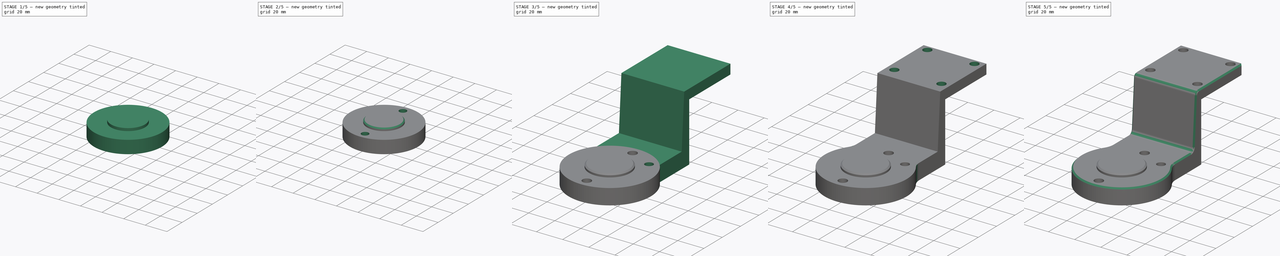
[diagram: build sequence overview — one tinted view per stage of 5, left to right]
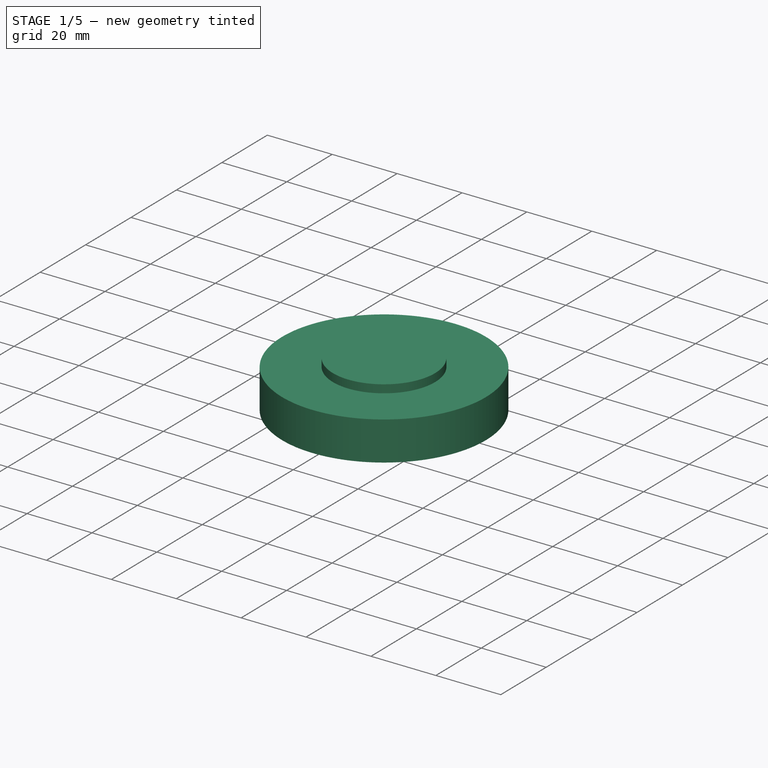
[diagram: stage 1 of 5 — iso view after this stage's code; geometry added in this stage tinted green]
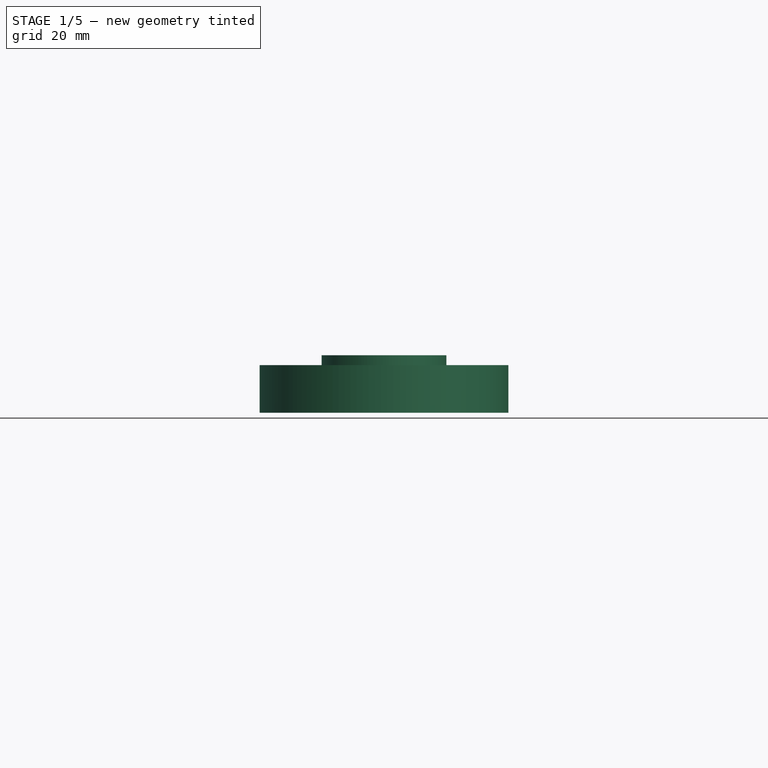
[diagram: stage 1 of 5 — front view after this stage's code; geometry added in this stage tinted green]
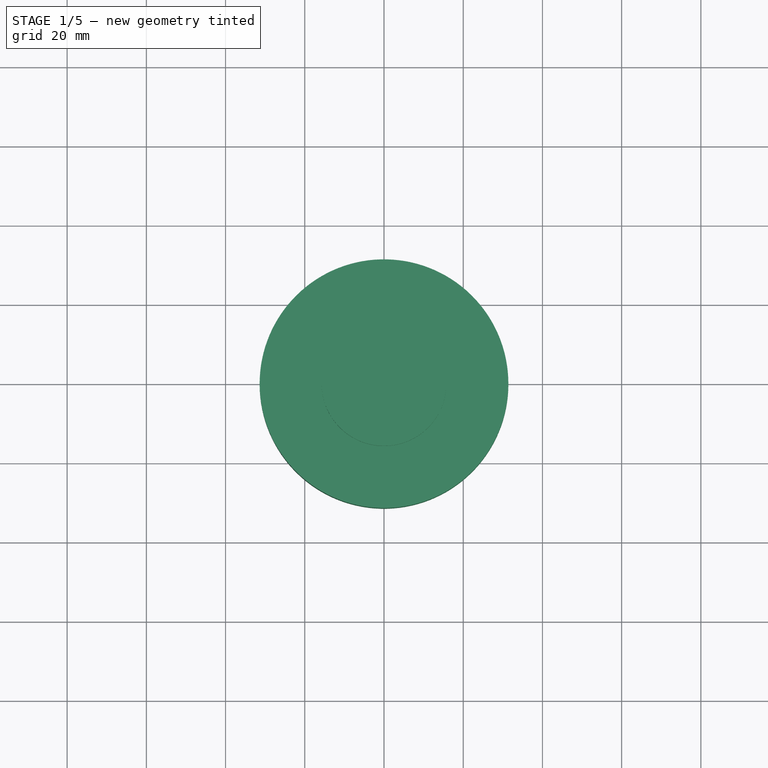
[diagram: stage 1 of 5 — top view after this stage's code; geometry added in this stage tinted green]
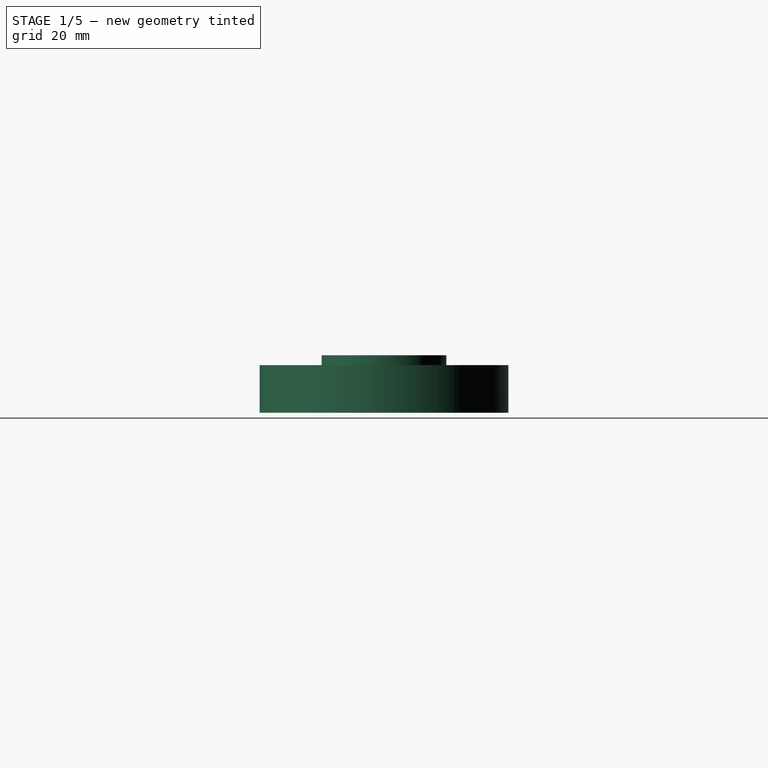
[diagram: stage 1 of 5 — right view after this stage's code; geometry added in this stage tinted green]
FCSTD DOCUMENT  (FreeCAD 0.17R13528 (Git))
Label: Kamerahalter-high
License: All rights reserved
LicenseURL: http://en.wikipedia.org/wiki/All_rights_reserved
objects: Sketcher::SketchObject×9, PartDesign::Chamfer×6, PartDesign::Pad×5, PartDesign::Pocket×5, Part::FeaturePython×2, PartDesign::Fillet×2, PartDesign::Body×1
note: 40 computed .brp shape members not serialized (recipe doc carries the construction recipe); baked Part::Feature solids carry a one-line shape summary decoded from their .brp

FEATURE [Sketcher::SketchObject] Sketch
  MapMode = 5
  Support = -> [XY_Plane]
  expr: Constraints[1] = 62.800000000000004 / 2
  sketch-geometry (1):
    g0: Circle CenterX=0 CenterY=0 CenterZ=0 NormalX=0 NormalY=0 NormalZ=1 AngleXU=0 Radius=31.4
  constraints (2):
    c: Coincident(g0,g-1)
    c: Radius(g0) = 31.4
FEATURE [PartDesign::Pad] Pad
  Length = 12
  Length2 = 100
  Profile = -> Sketch
  Type = 0
FEATURE [Sketcher::SketchObject] Sketch001
  MapMode = 2
  Support = -> [Sketch001]
  expr: Constraints[1] = 32.299999999999997 / 2
  sketch-geometry (1):
    g0: Circle CenterX=0 CenterY=0 CenterZ=0 NormalX=0 NormalY=0 NormalZ=1 AngleXU=0 Radius=16.15
  constraints (2):
    c: Coincident(g0,g-1)
    c: Radius(g0) = 16.15
FEATURE [PartDesign::Pad] Pad001
  BaseFeature = -> Pad
  Length = 2.5
  Length2 = 100
  Profile = -> Sketch001
  Type = 0
FEATURE [Sketcher::SketchObject] Sketch002
  MapMode = 5
  Support = -> [XY_Plane]
  expr: Constraints[3] = 6.5999999999999996 / 2
  expr: Constraints[2] = 6.5999999999999996 / 2
  sketch-geometry (2):
    g0: Circle CenterX=0 CenterY=25 CenterZ=0 NormalX=0 NormalY=0 NormalZ=1 AngleXU=0 Radius=3.3
    g1: Circle CenterX=0 CenterY=-25 CenterZ=0 NormalX=0 NormalY=0 NormalZ=1 AngleXU=0 Radius=3.3
  constraints (6):
    c: PointOnObject(g0,g-2)
    c: PointOnObject(g1,g-2)
    c: Radius(g0) = 3.3
    c: Radius(g1) = 3.3
    c: Symmetric(g1,g0,g-1)
    c: DistanceY(g1,g0) = 50
FEATURE [Part::FeaturePython] Clone  label="N10_804_18002"  # WARN: FeaturePython — macro-defined, semantics opaque (R4)
  AttacherType = Attacher::AttachEngine3D
  Fuse = false
  Placement = pos=(380,75,0) rot=(0,1,0;3.14159rad)
  Scale = (10,10,10)
FEATURE [Sketcher::SketchObject] Sketch009
  MapMode = 5
  Placement = pos=(0,0,12) rot=(0,0,1;0rad)
  Support = -> [Pad001]
  expr: Constraints[1] = 31.5 / 2
  sketch-geometry (1):
    g0: Circle CenterX=0 CenterY=0 CenterZ=0 NormalX=0 NormalY=0 NormalZ=1 AngleXU=0 Radius=15.75
  constraints (2):
    c: Coincident(g0,g-1)
    c: Radius(g0) = 15.75
FEATURE [PartDesign::Pad] Pad004
  BaseFeature = -> Pad001
  Length = 2.5
  Length2 = 100
  Profile = -> Sketch009
  Type = 0
FEATURE [PartDesign::Pocket] Pocket
  BaseFeature = -> Pad004
  Length = 3.5
  Length2 = 100
  Profile = -> Pad001 [Face4]
  Type = 0
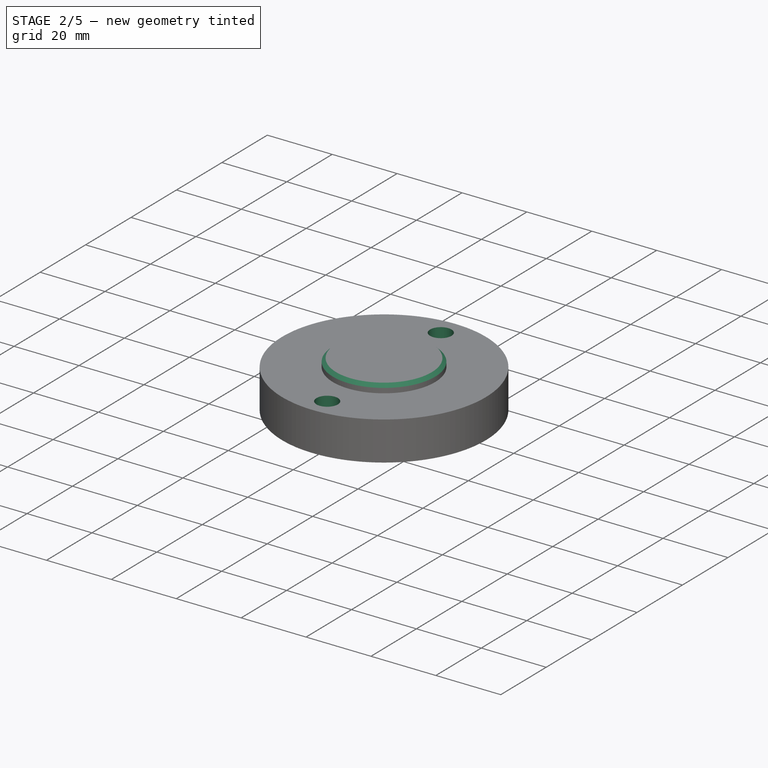
[diagram: stage 2 of 5 — iso view after this stage's code; geometry added in this stage tinted green]
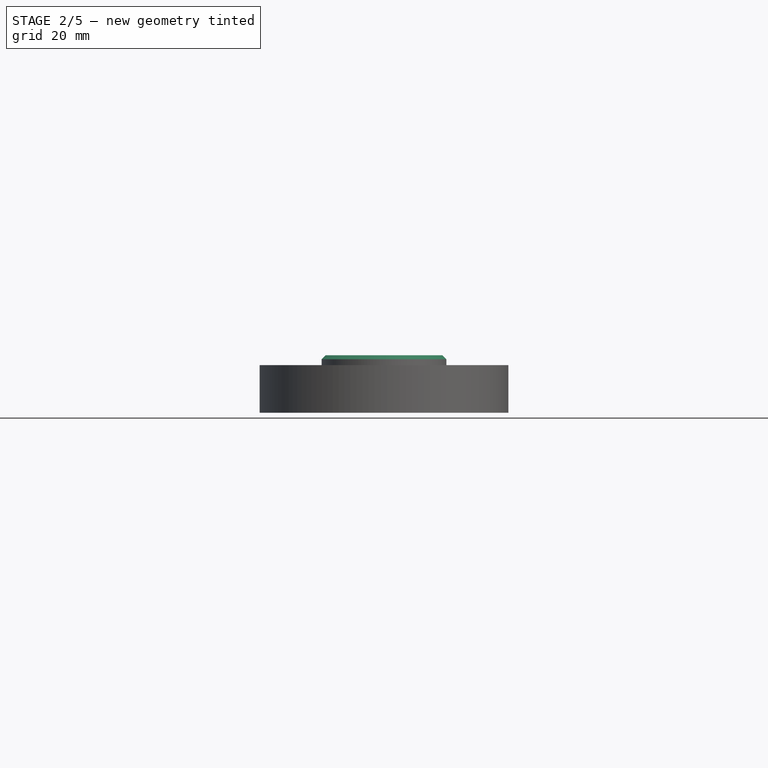
[diagram: stage 2 of 5 — front view after this stage's code; geometry added in this stage tinted green]
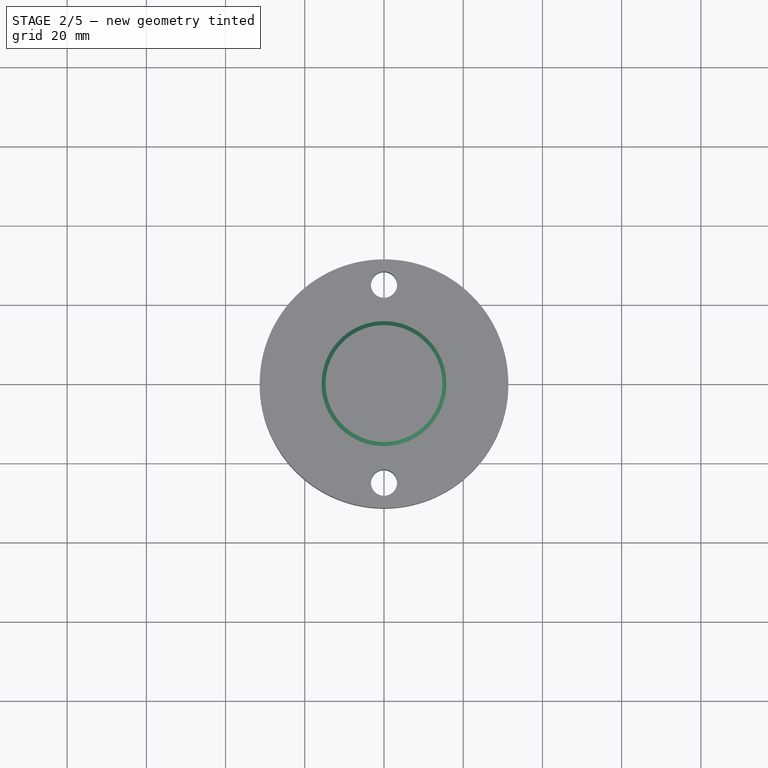
[diagram: stage 2 of 5 — top view after this stage's code; geometry added in this stage tinted green]
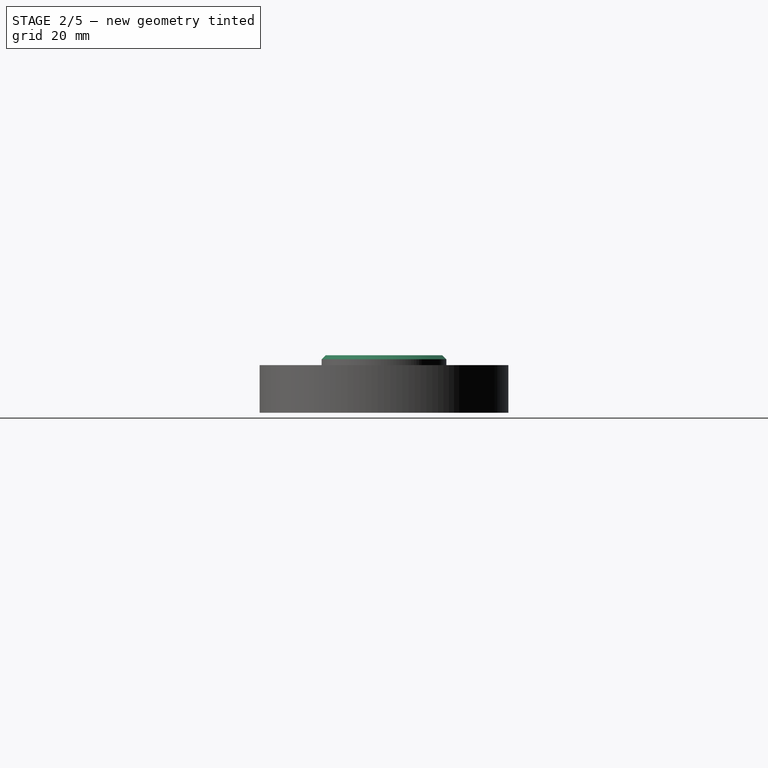
[diagram: stage 2 of 5 — right view after this stage's code; geometry added in this stage tinted green]
FEATURE [PartDesign::Pocket] Pocket001
  BaseFeature = -> Pocket
  Length = 20
  Length2 = 100
  Profile = -> Sketch002
  Reversed = true
  Type = 0
FEATURE [PartDesign::Chamfer] Chamfer
  Base = -> Pocket001 [Edge15]
  BaseFeature = -> Pocket001
  Size = 1
FEATURE [PartDesign::Chamfer] Chamfer001
  Base = -> Chamfer [Edge15]
  BaseFeature = -> Chamfer
  Size = 0.75
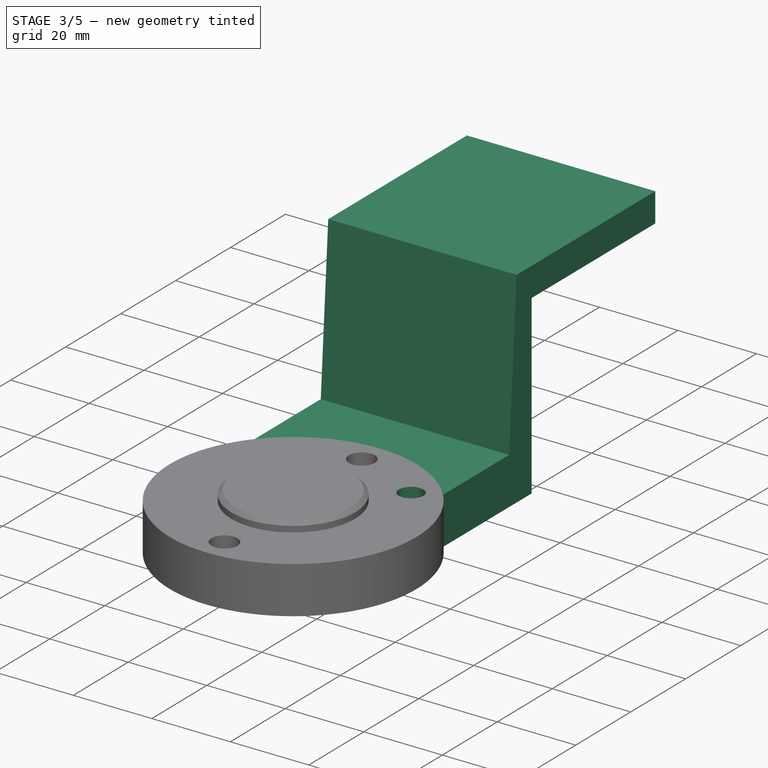
[diagram: stage 3 of 5 — iso view after this stage's code; geometry added in this stage tinted green]
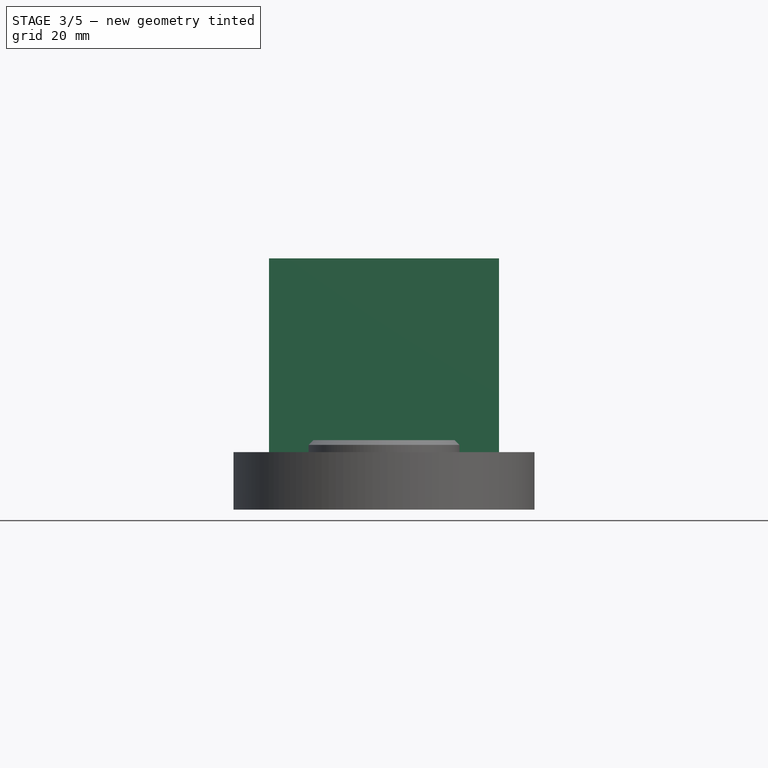
[diagram: stage 3 of 5 — front view after this stage's code; geometry added in this stage tinted green]
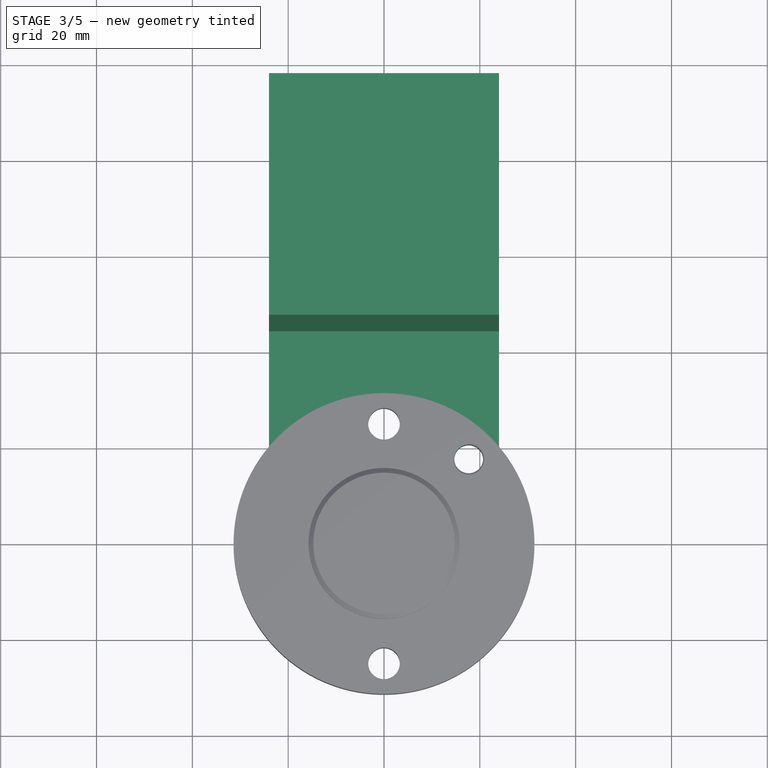
[diagram: stage 3 of 5 — top view after this stage's code; geometry added in this stage tinted green]
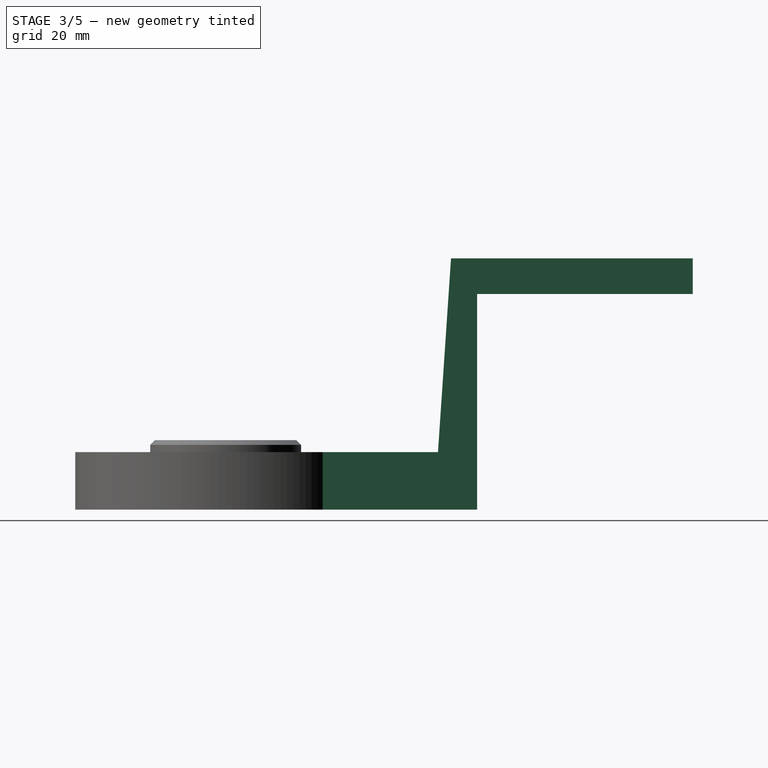
[diagram: stage 3 of 5 — right view after this stage's code; geometry added in this stage tinted green]
FEATURE [Sketcher::SketchObject] Sketch003
  MapMode = 5
  Placement = pos=(0,0,12) rot=(0,0,1;0rad)
  Support = -> [Chamfer001]
  sketch-geometry (1):
    g0: Circle CenterX=17.6777 CenterY=17.6777 CenterZ=0 NormalX=0 NormalY=0 NormalZ=1 AngleXU=0 Radius=3
  constraints (2):
    c: Radius(g0) = 3
    c: Distance(g-1,g0) = 25
FEATURE [PartDesign::Pocket] Pocket002
  BaseFeature = -> Chamfer001
  Length = 12
  Length2 = 100
  Profile = -> Sketch003
  Type = 0
FEATURE [PartDesign::Chamfer] Chamfer003
  Base = -> Pocket002 [Edge11,Edge3]
  BaseFeature = -> Pocket002
  Size = 0.25
FEATURE [Sketcher::SketchObject] Sketch010
  MapMode = 5
  Placement = pos=(0,0,0) rot=(0.57735,0.57735,0.57735;2.0944rad)
  Support = -> [YZ_Plane]
  sketch-geometry (9):
    g0: LineSegment StartX=34.021 StartY=0 StartZ=0 EndX=52.4986 EndY=0 EndZ=0
    g1: LineSegment StartX=52.4986 StartY=0 StartZ=0 EndX=52.4986 EndY=45 EndZ=0
    g2: LineSegment StartX=52.4986 StartY=45 StartZ=0 EndX=97.4986 EndY=45 EndZ=0
    g3: LineSegment StartX=97.4986 StartY=45 StartZ=0 EndX=97.4986 EndY=52.4208 EndZ=0
    g4: LineSegment StartX=97.4986 StartY=52.4208 StartZ=0 EndX=47.041 EndY=52.4208 EndZ=0
    g5: LineSegment StartX=47.041 StartY=52.4208 StartZ=0 EndX=44.3195 EndY=12 EndZ=0
    g6: LineSegment StartX=44.3195 StartY=12 StartZ=0 EndX=34.021 EndY=12 EndZ=0
    g7: LineSegment StartX=34.021 StartY=12 StartZ=0 EndX=34.021 EndY=0 EndZ=0
    g8: GeomPoint X=50.5126 Y=36.9694 Z=0
  constraints (19):
    c: PointOnObject(g0,g-1)
    c: PointOnObject(g0,g-1)
    c: Coincident(g1,g0)
    c: Coincident(g2,g1)
    c: Coincident(g3,g2)
    c: Coincident(g4,g3)
    c: Coincident(g4,g5)
    c: Coincident(g5,g6)
    c: Coincident(g6,g7)
    c: Coincident(g7,g0)
    c: Vertical(g7)
    c: Parallel(g6,g0)
    c: Distance(g1) = 45
    c: Perpendicular(g1,g2)
    c: Perpendicular(g2,g3)
    c: Distance(g2) = 45
    c: DistanceY(g7,g7) = 12
    c: Angle(g0,g1,g0) = 1.5708
    c: Parallel(g2,g4)
FEATURE [Part::FeaturePython] Clone001  label="N10_804_18003"  # WARN: FeaturePython — macro-defined, semantics opaque (R4)
  AttacherType = Attacher::AttachEngine3D
  Fuse = false
  Placement = pos=(-380,75,45) rot=(1,0,0;3.14159rad)
  Scale = (10,10,10)
FEATURE [Sketcher::SketchObject] Sketch011
  MapMode = 5
  Support = -> [XY_Plane]
  sketch-geometry (4):
    g0: LineSegment StartX=24 StartY=20.2475 StartZ=0 EndX=24 EndY=34.1741 EndZ=0
    g1: LineSegment StartX=24 StartY=34.1741 StartZ=0 EndX=-24 EndY=34.1741 EndZ=0
    g2: LineSegment StartX=-24 StartY=34.1741 StartZ=0 EndX=-24 EndY=20.2475 EndZ=0
    g3: ArcOfCircle CenterX=0 CenterY=0 CenterZ=0 NormalX=0 NormalY=0 NormalZ=1 AngleXU=0 Radius=31.4 StartAngle=0.700793 EndAngle=2.4408
  constraints (11):
    c: Vertical(g0)
    c: Coincident(g0,g1)
    c: Horizontal(g1)
    c: Coincident(g1,g2)
    c: Vertical(g2)
    c: Coincident(g3,g-1)
    c: Coincident(g3,g2)
    c: Coincident(g3,g0)
    c: Symmetric(g0,g1,g-2)
    c: Radius(g3) = 31.4
    c: DistanceX(g1,g1) = 48
FEATURE [PartDesign::Pad] Pad005
  BaseFeature = -> Chamfer003
  Length = 12
  Length2 = 100
  Profile = -> Sketch011
  Type = 0
FEATURE [PartDesign::Pad] Pad006
  BaseFeature = -> Pad005
  Length = 24
  Length2 = 24
  Profile = -> Sketch010
  Type = 4
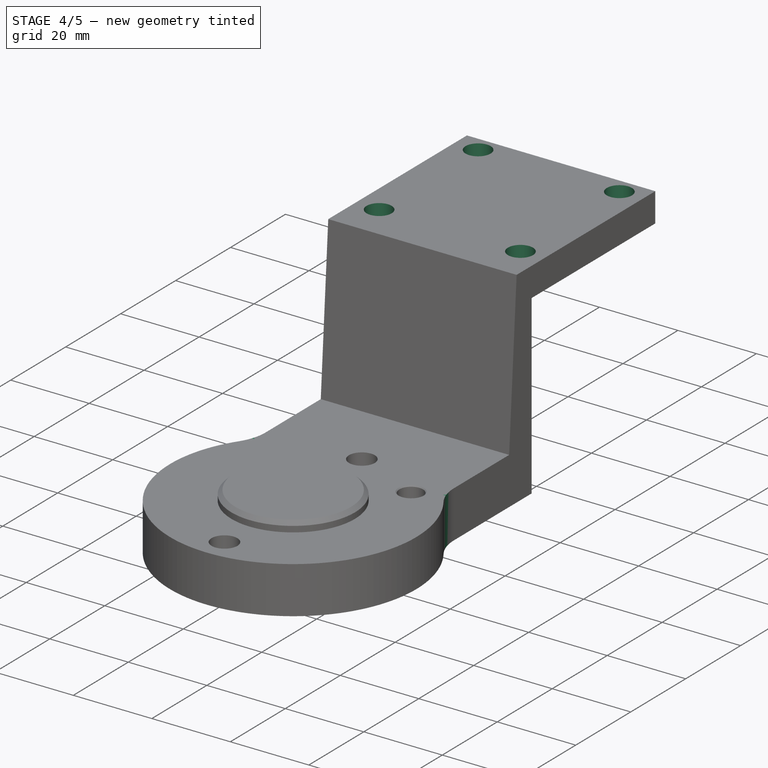
[diagram: stage 4 of 5 — iso view after this stage's code; geometry added in this stage tinted green]
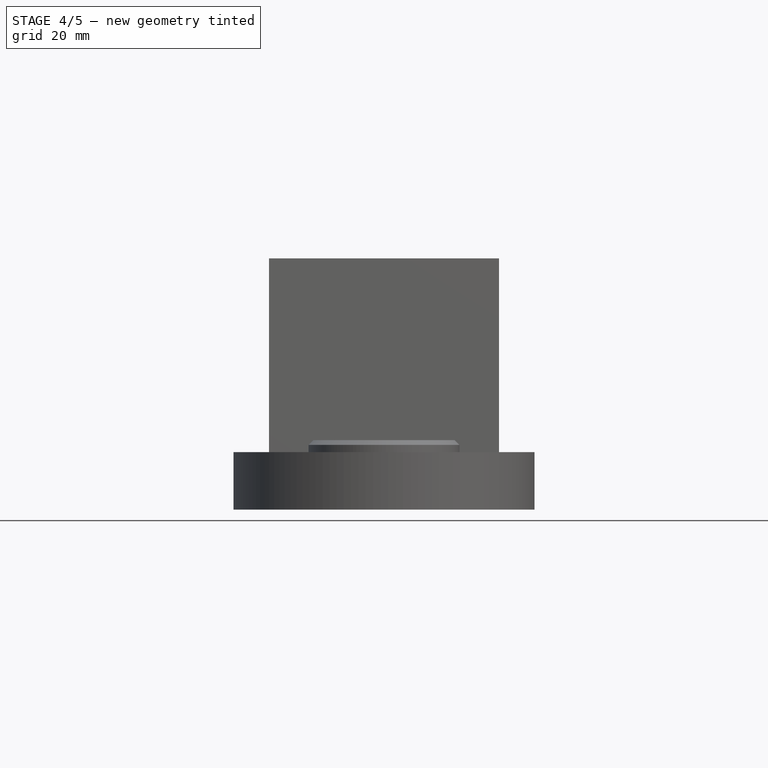
[diagram: stage 4 of 5 — front view after this stage's code; geometry added in this stage tinted green]
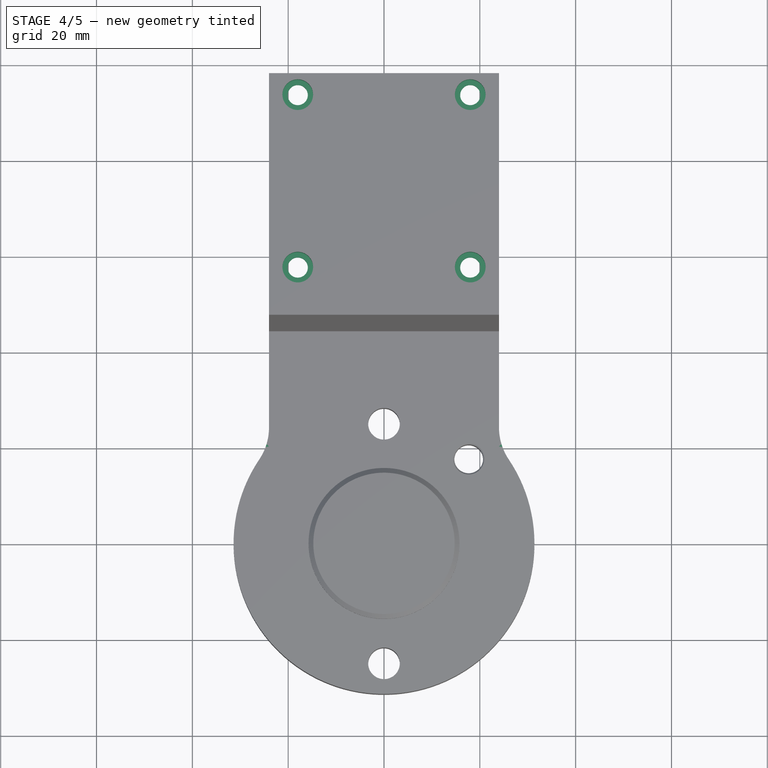
[diagram: stage 4 of 5 — top view after this stage's code; geometry added in this stage tinted green]
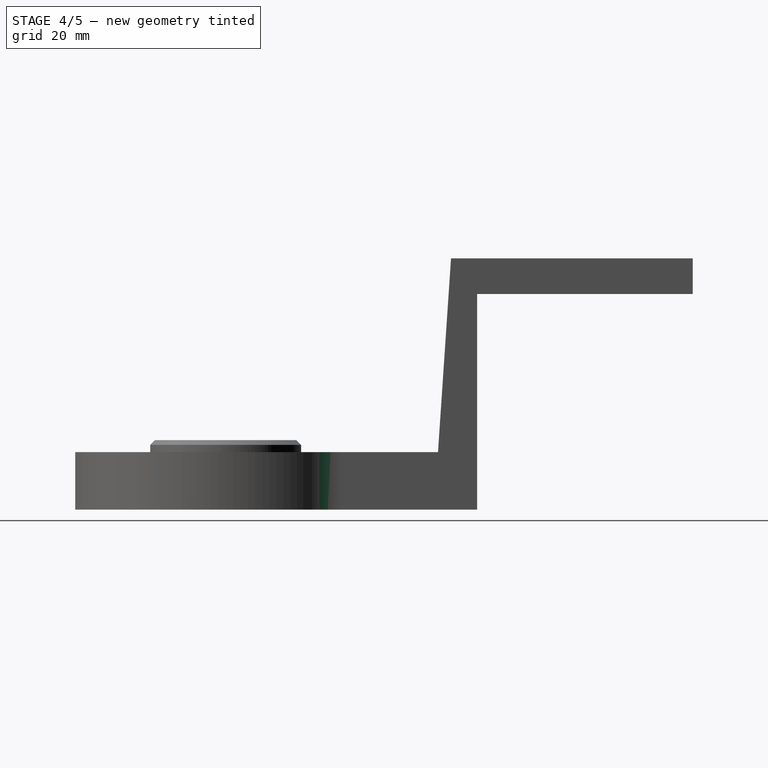
[diagram: stage 4 of 5 — right view after this stage's code; geometry added in this stage tinted green]
FEATURE [Sketcher::SketchObject] Sketch012
  MapMode = 5
  Placement = pos=(-5e-12,0,45) rot=(1,0,0;3.14159rad)
  Support = -> [Pad006]
  sketch-geometry (4):
    g0: Circle CenterX=18 CenterY=-92.9987 CenterZ=0 NormalX=0 NormalY=0 NormalZ=1 AngleXU=0 Radius=2.1
    g1: Circle CenterX=-18 CenterY=-92.9987 CenterZ=0 NormalX=0 NormalY=0 NormalZ=1 AngleXU=0 Radius=2.1
    g2: Circle CenterX=-18 CenterY=-56.9987 CenterZ=0 NormalX=0 NormalY=0 NormalZ=1 AngleXU=0 Radius=2.1
    g3: Circle CenterX=18 CenterY=-56.9987 CenterZ=0 NormalX=0 NormalY=0 NormalZ=1 AngleXU=0 Radius=2.1
  constraints (10):
    c: Symmetric(g0,g1,g-2)
    c: Vertical(g1,g2)
    c: Vertical(g3,g0)
    c: Horizontal(g3,g2)
    c: Equal(g2,g1)
    c: Equal(g1,g0)
    c: Equal(g0,g3)
    c: Radius(g1) = 2.1
    c: DistanceY(g0,g3) = 36
    c: DistanceX(g2,g3) = 36
FEATURE [PartDesign::Pocket] Pocket003  label="Kleine Bohrung"
  BaseFeature = -> Pad006
  Length = 0
  Length2 = 100
  Offset = 2
  Profile = -> Sketch012
  Type = 2
FEATURE [Sketcher::SketchObject] Sketch013
  MapMode = 5
  Placement = pos=(-6e-12,1e-12,52.4208) rot=(0,0,1;0rad)
  Support = -> [Pocket003]
  sketch-geometry (4):
    g0: Circle CenterX=18 CenterY=93.0001 CenterZ=0 NormalX=0 NormalY=0 NormalZ=1 AngleXU=0 Radius=3.2
    g1: Circle CenterX=-18 CenterY=93.0001 CenterZ=0 NormalX=0 NormalY=0 NormalZ=1 AngleXU=0 Radius=3.2
    g2: Circle CenterX=-18 CenterY=57.0001 CenterZ=0 NormalX=0 NormalY=0 NormalZ=1 AngleXU=0 Radius=3.2
    g3: Circle CenterX=18 CenterY=57.0001 CenterZ=0 NormalX=0 NormalY=0 NormalZ=1 AngleXU=0 Radius=3.2
  constraints (9):
    c: DistanceY(g3,g0) = 36
    c: Symmetric(g1,g0,g-2)
    c: Symmetric(g3,g2,g-2)
    c: DistanceX(g1,g0) = 36
    c: Vertical(g0,g3)
    c: Equal(g3,g0)
    c: Equal(g0,g1)
    c: Equal(g1,g2)
    c: Radius(g1) = 3.2
FEATURE [PartDesign::Pocket] Pocket004  label="Große Bohrung"
  BaseFeature = -> Pocket003
  Length = 5.35
  Length2 = 100
  Profile = -> Sketch013
  Type = 0
FEATURE [PartDesign::Fillet] Fillet
  Base = -> Pocket004 [Edge17,Edge10]
  BaseFeature = -> Pocket004
  Radius = 12
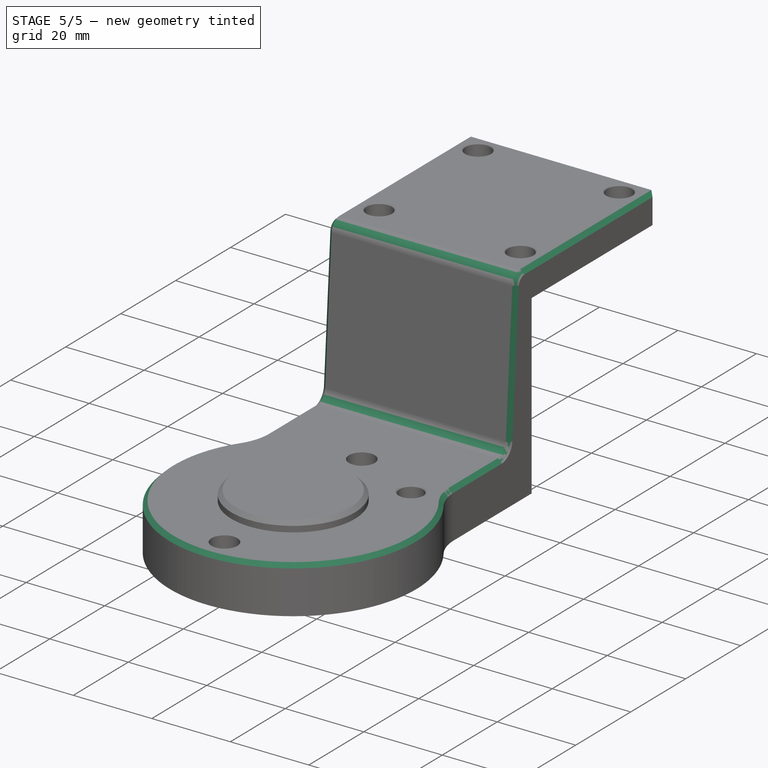
[diagram: stage 5 of 5 — iso view after this stage's code; geometry added in this stage tinted green]
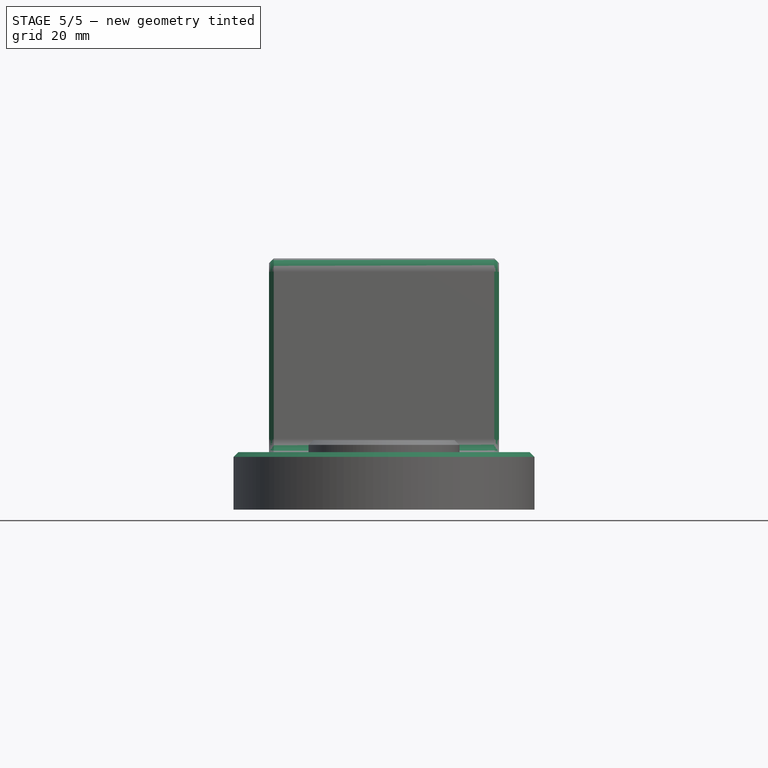
[diagram: stage 5 of 5 — front view after this stage's code; geometry added in this stage tinted green]
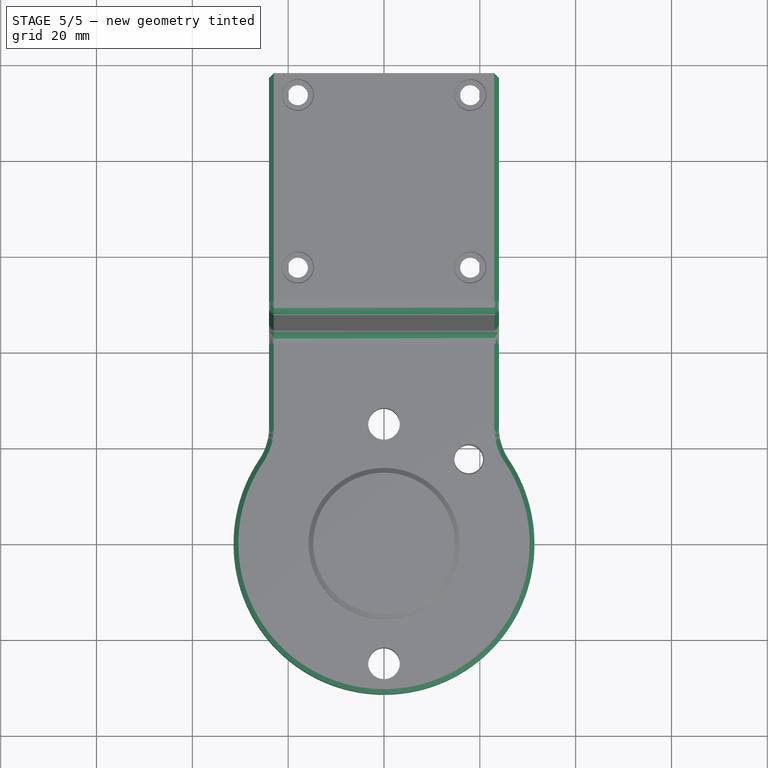
[diagram: stage 5 of 5 — top view after this stage's code; geometry added in this stage tinted green]
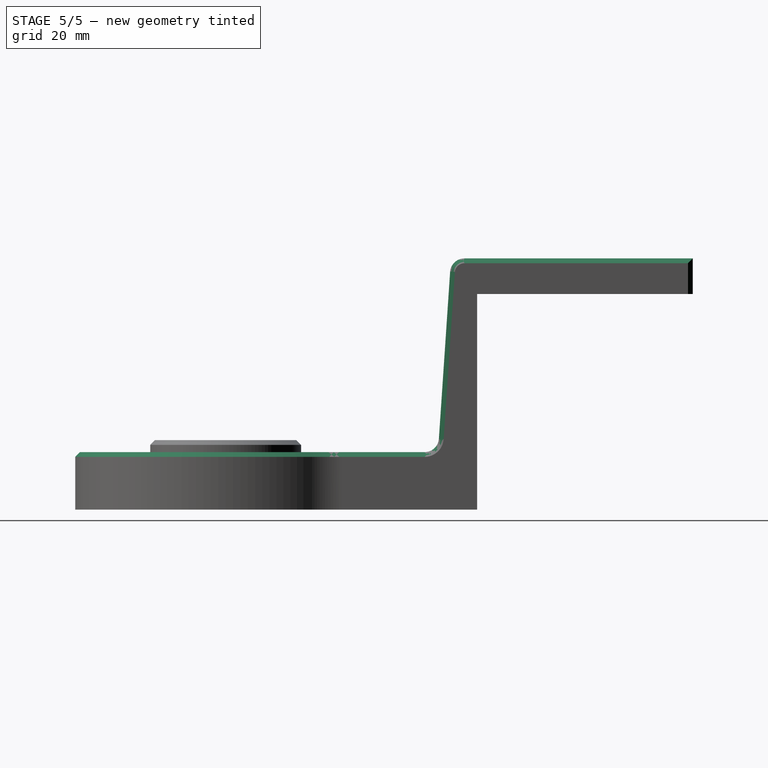
[diagram: stage 5 of 5 — right view after this stage's code; geometry added in this stage tinted green]
FEATURE [PartDesign::Fillet] Fillet001
  Base = -> Fillet [Edge75,Edge76]
  BaseFeature = -> Fillet
  Radius = 3
FEATURE [PartDesign::Chamfer] Chamfer004
  Base = -> Fillet001 [Edge67,Edge48]
  BaseFeature = -> Fillet001
  Size = 1
FEATURE [PartDesign::Chamfer] Chamfer005
  Base = -> Chamfer004 [Edge37,Edge9]
  BaseFeature = -> Chamfer004
  Size = 1
FEATURE [PartDesign::Chamfer] Chamfer006
  Base = -> Chamfer005 [Edge62,Edge61,Edge60,Edge59]
  BaseFeature = -> Chamfer005
  Size = 0.2
FEATURE [PartDesign::Body] Body
  Group = -> [Sketch,Pad,Sketch001,Pad001,Pad004,Pocket,Sketch009,Sketch002,Pocket001,Chamfer,Chamfer001,Sketch003,Pocket002,Chamfer003,Sketch011,Pad005,Sketch010,Pad006,Sketch012,Pocket003,Sketch013,Pocket004,Fillet,Fillet001,Chamfer004,Chamfer005,Chamfer006]
  Origin = -> Origin
  Tip = -> Chamfer006
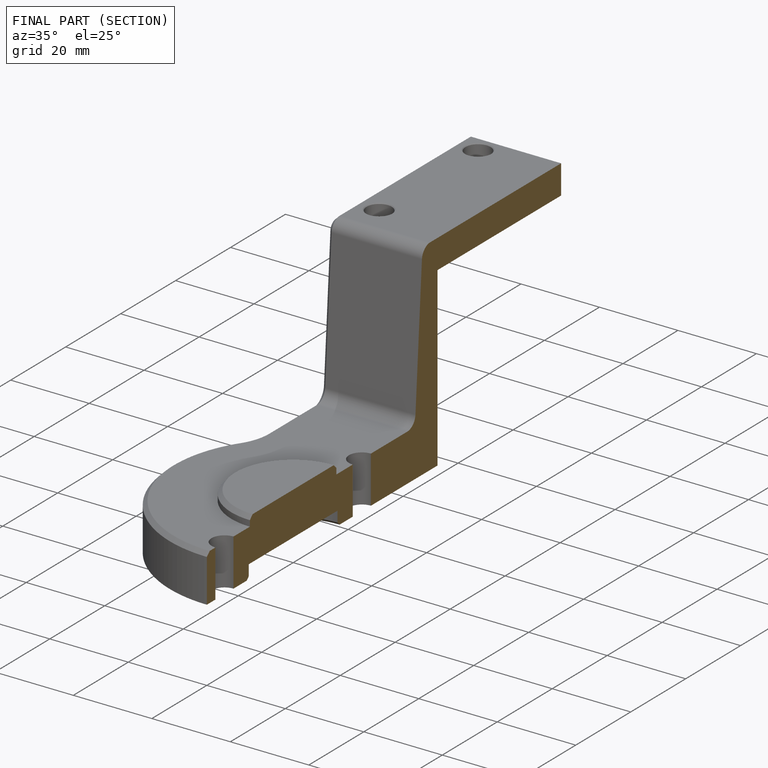
[diagram: finished part — half-section view (interior)]
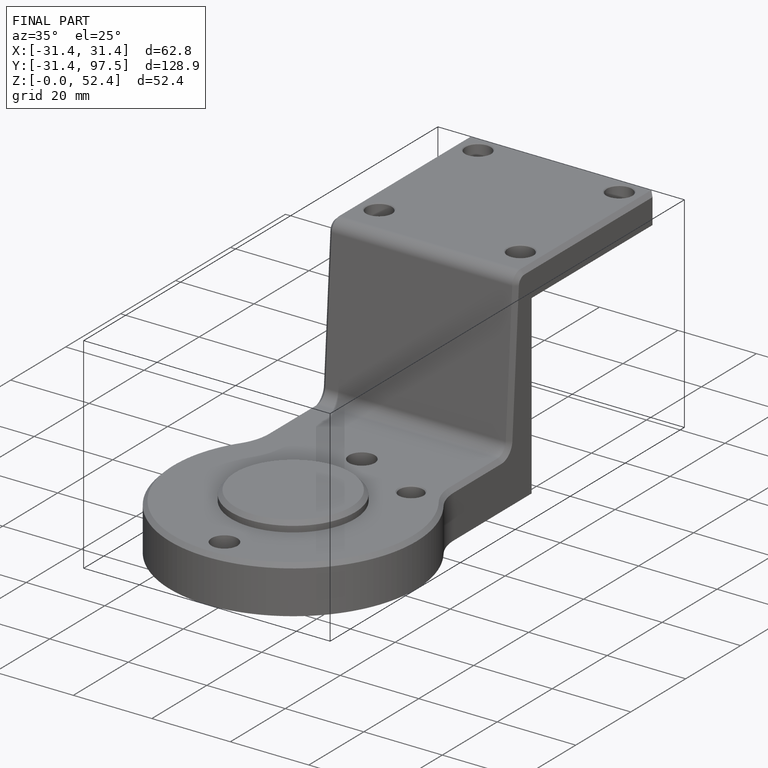
[diagram: finished part — iso view with bounding-box wireframe]
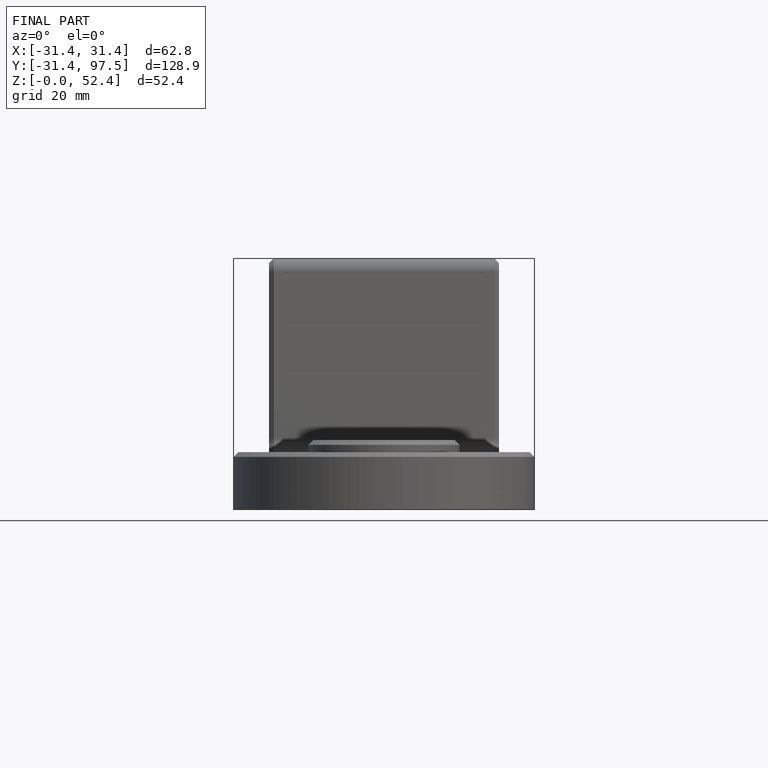
[diagram: finished part — front view with bounding-box wireframe]
